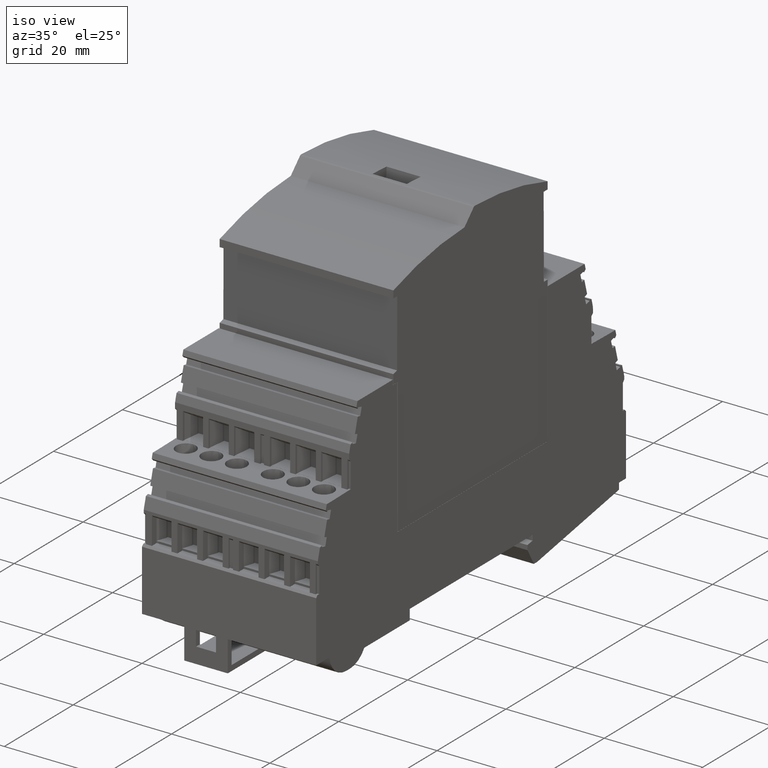
[diagram: clean part render]
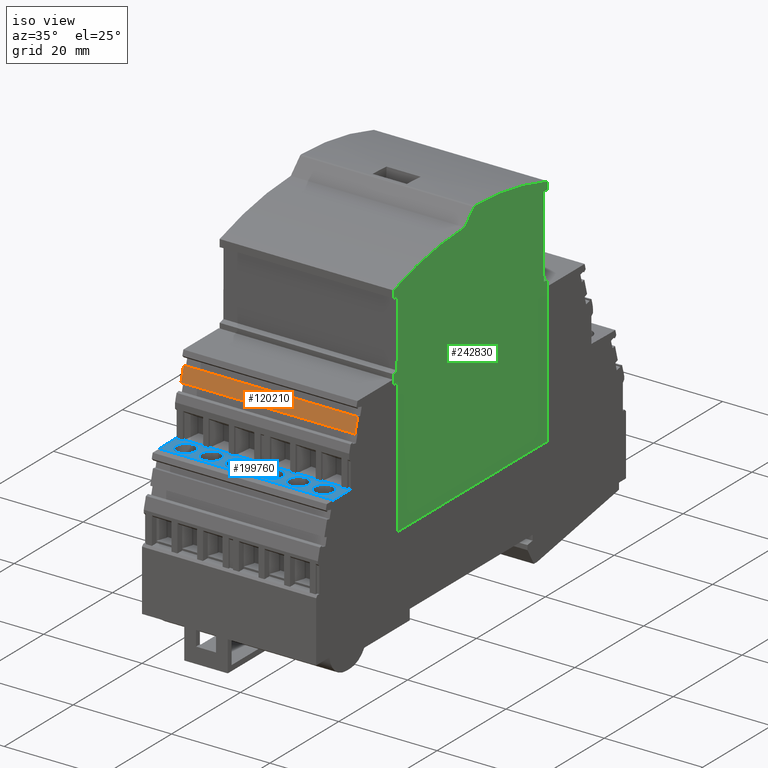
[diagram: same view with three faces highlighted in distinct colors, each labeled with its STEP entity id]
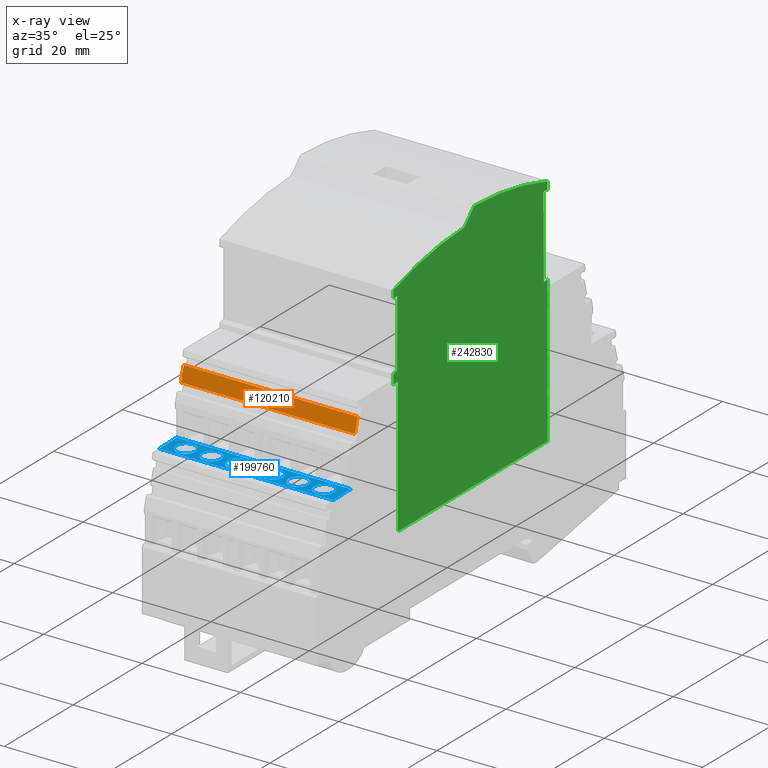
[diagram: x-ray of the same camera — body ghosted, the three highlighted faces saturated]
A machine part, iso view with three faces highlighted in distinct colors.
The next image is the same camera in x-ray (body ghosted, the three faces saturated) — at least one of them is partly hidden behind the body in this view.
Their STEP definitions:

[orange] entity #120210 — the highlighted planar face has unit normal (0, 0.9646, -0.2639).
#18190=CARTESIAN_POINT('',(98.1444898489384,195.882836901411,
87.3021431980011));
#18200=VERTEX_POINT('',#18190);
#18230=CARTESIAN_POINT('',(77.8990549103534,120.849919293595,
87.302143198001));
#18240=DIRECTION('',(-0.260504508642667,-0.965472630879221,
-2.77263400535688E-16));
#18250=VECTOR('',#18240,1.);
#18260=LINE('',#18230,#18250);
#18270=CARTESIAN_POINT('',(98.9260033748665,198.779254794049,
87.3021431980011));
#18280=VERTEX_POINT('',#18270);
#18290=EDGE_CURVE('',#18280,#18200,#18260,.T.);
#117860=CARTESIAN_POINT('',(98.9260033748665,198.779254794049,
51.902143198001));
#117870=VERTEX_POINT('',#117860);
#117900=CARTESIAN_POINT('',(88.7613087935767,161.107221896749,
51.902143198001));
#117910=DIRECTION('',(0.260504508642667,0.965472630879221,
2.77261026446115E-16));
#117920=VECTOR('',#117910,1.);
#117930=LINE('',#117900,#117920);
#117940=CARTESIAN_POINT('',(98.1444898489385,195.882836901411,
51.902143198001));
#117950=VERTEX_POINT('',#117940);
#117960=EDGE_CURVE('',#117950,#117870,#117930,.T.);
#120000=CARTESIAN_POINT('',(98.9021325346424,198.690785527115,
51.902143198001));
#120010=DIRECTION('',(0.96547263087922,-0.260504508642667,
9.08682826171789E-16));
#120020=DIRECTION('',(0.260504508642667,0.965472630879221,
2.77261026446115E-16));
#120030=AXIS2_PLACEMENT_3D('',#120000,#120010,#120020);
#120040=PLANE('',#120030);
#120050=ORIENTED_EDGE('',*,*,#117960,.F.);
#120060=CARTESIAN_POINT('',(98.9260033748665,198.779254794049,
103.152143198093));
#120070=DIRECTION('',(9.40929702887336E-16,-9.24937744861512E-19,-1.));
#120080=VECTOR('',#120070,1.);
#120090=LINE('',#120060,#120080);
#120100=EDGE_CURVE('',#18280,#117870,#120090,.T.);
#120110=ORIENTED_EDGE('',*,*,#120100,.T.);
#120120=ORIENTED_EDGE('',*,*,#18290,.F.);
#120130=CARTESIAN_POINT('',(98.1444898489385,195.882836901411,
103.152143198093));
#120140=DIRECTION('',(9.40929702887336E-16,-9.24937744861512E-19,-1.));
#120150=VECTOR('',#120140,1.);
#120160=LINE('',#120130,#120150);
#120170=EDGE_CURVE('',#18200,#117950,#120160,.T.);
#120180=ORIENTED_EDGE('',*,*,#120170,.F.);
#120190=EDGE_LOOP('',(#120180,#120120,#120110,#120050));
#120200=FACE_OUTER_BOUND('',#120190,.T.);
#120210=ADVANCED_FACE('',(#120200),#120040,.F.);

[blue] entity #199760 — the highlighted planar face has unit normal (0, 0.0197, -0.9998).
#17390=CARTESIAN_POINT('',(91.8825394237235,186.105397818636,
87.302143198001));
#17400=VERTEX_POINT('',#17390);
#17430=CARTESIAN_POINT('',(71.442721848133,185.630335277526,
87.302143198001));
#17440=DIRECTION('',(-0.999730013753946,-0.0232357397027754,
-1.06310981489542E-15));
#17450=VECTOR('',#17440,1.);
#17460=LINE('',#17430,#17450);
#17470=CARTESIAN_POINT('',(96.9455165743599,186.223071608134,
87.302143198001));
#17480=VERTEX_POINT('',#17470);
#17490=EDGE_CURVE('',#17480,#17400,#17460,.T.);
#40430=CARTESIAN_POINT('',(96.9455165743599,186.223071608134,
85.712143198001));
#40440=VERTEX_POINT('',#40430);
#40470=CARTESIAN_POINT('',(96.9455165743599,186.223071608134,
120.852143198093));
#40480=DIRECTION('',(-9.40929702887336E-16,9.24937744861522E-19,1.));
#40490=VECTOR('',#40480,1.);
#40500=LINE('',#40470,#40490);
#40510=CARTESIAN_POINT('',(96.9455165743599,186.223071608134,
81.5921431980011));
#40520=VERTEX_POINT('',#40510);
#40530=EDGE_CURVE('',#40520,#40440,#40500,.T.);
#40830=CARTESIAN_POINT('',(96.9455165743599,186.223071608134,
80.5121431980011));
#40840=VERTEX_POINT('',#40830);
#40870=CARTESIAN_POINT('',(96.9455165743599,186.223071608134,
76.3921431980011));
#40880=VERTEX_POINT('',#40870);
#40890=EDGE_CURVE('',#40880,#40840,#40500,.T.);
#41190=CARTESIAN_POINT('',(96.9455165743599,186.223071608134,
75.3121431980011));
#41200=VERTEX_POINT('',#41190);
#41250=CARTESIAN_POINT('',(96.94551657436,186.223071608134,
71.1921431980011));
#41260=VERTEX_POINT('',#41250);
#41270=EDGE_CURVE('',#41260,#41200,#40500,.T.);
#41800=CARTESIAN_POINT('',(96.94551657436,186.223071608134,
69.9921431980011));
#41810=VERTEX_POINT('',#41800);
#42200=CARTESIAN_POINT('',(96.9455165743599,186.223071608134,
120.852143198093));
#42210=DIRECTION('',(9.40929702887336E-16,-9.24937744861522E-19,-1.));
#42220=VECTOR('',#42210,1.);
#42230=LINE('',#42200,#42220);
#42240=EDGE_CURVE('',#41260,#41810,#42230,.T.);
#45440=CARTESIAN_POINT('',(96.9455165743599,186.223071608134,
120.852143198093));
#45450=DIRECTION('',(9.40929702887336E-16,-9.24937744861522E-19,-1.));
#45460=VECTOR('',#45450,1.);
#45470=LINE('',#45440,#45460);
#45480=EDGE_CURVE('',#40880,#41200,#45470,.T.);
#45800=CARTESIAN_POINT('',(96.9455165743599,186.223071608134,
120.852143198093));
#45810=DIRECTION('',(9.40929702887336E-16,-9.24937744861522E-19,-1.));
#45820=VECTOR('',#45810,1.);
#45830=LINE('',#45800,#45820);
#45840=EDGE_CURVE('',#40520,#40840,#45830,.T.);
#47390=CARTESIAN_POINT('',(96.9455165743599,186.223071608134,
86.9121431980011));
#47400=VERTEX_POINT('',#47390);
#47430=CARTESIAN_POINT('',(96.9455165743599,186.223071608134,
120.852143198093));
#47440=DIRECTION('',(9.40929702887336E-16,-9.24937744861522E-19,-1.));
#47450=VECTOR('',#47440,1.);
#47460=LINE('',#47430,#47450);
#47470=EDGE_CURVE('',#47400,#40440,#47460,.T.);
#47700=EDGE_CURVE('',#47400,#17480,#40500,.T.);
#56610=CARTESIAN_POINT('',(92.3926972658695,186.117254914717,
78.452143198001));
#56620=VERTEX_POINT('',#56610);
#56710=CARTESIAN_POINT('',(96.3923718723095,186.210215410823,
78.4521431980005));
#56720=VERTEX_POINT('',#56710);
#56750=CARTESIAN_POINT('',(96.3923718723095,186.210215410823,
78.8355477278552));
#56760=CARTESIAN_POINT('',(96.3923718723095,186.210215410823,
78.068738668147));
#56770=CARTESIAN_POINT('',(96.282172016952,186.207654144162,
77.6934019783332));
#56780=CARTESIAN_POINT('',(95.867637371385,186.198019523825,
77.0483211478466));
#56790=CARTESIAN_POINT('',(95.5720254807534,186.191148907909,
76.7921512050464));
#56800=CARTESIAN_POINT('',(94.874568010625,186.174938591117,
76.4736072095377));
#56810=CARTESIAN_POINT('',(94.4873987713011,186.165939997955,
76.4179361605798));
#56820=CARTESIAN_POINT('',(93.7284562953781,186.148300645752,
76.5270644678986));
#56830=CARTESIAN_POINT('',(93.3726532052401,186.140031065091,
76.6895674774743));
#56840=CARTESIAN_POINT('',(92.7931845971968,186.126563047169,
77.1917206211107));
#56850=CARTESIAN_POINT('',(92.581712623379,186.121648012439,
77.5208041318712));
#56860=CARTESIAN_POINT('',(92.3656950719395,186.116627329328,
78.2565520367652));
#56870=CARTESIAN_POINT('',(92.3656950719395,186.116627329328,
78.6477343592369));
#56880=CARTESIAN_POINT('',(92.5817126233789,186.121648012439,
79.3834822641309));
#56890=CARTESIAN_POINT('',(92.7931845971968,186.126563047169,
79.7125657748913));
#56900=CARTESIAN_POINT('',(93.37265320524,186.140031065091,
80.2147189185278));
#56910=CARTESIAN_POINT('',(93.7284562953781,186.148300645752,
80.3772219281035));
#56920=CARTESIAN_POINT('',(94.487398771301,186.165939997955,
80.4863502354224));
#56930=CARTESIAN_POINT('',(94.8745680106249,186.174938591117,
80.4306791864644));
#56940=CARTESIAN_POINT('',(95.5720254807533,186.191148907909,
80.1121351909558));
#56950=CARTESIAN_POINT('',(95.8676373713849,186.198019523825,
79.8559652481555));
#56960=CARTESIAN_POINT('',(96.282172016952,186.207654144162,
79.210884417669));
#56970=CARTESIAN_POINT('',(96.3923718723095,186.210215410823,
78.8355477278552));
#56980=CARTESIAN_POINT('',(96.3923718723095,186.210215410823,
78.068738668147));
#56990=B_SPLINE_CURVE_WITH_KNOTS('',3,(#56750,#56760,#56770,#56780,
#56790,#56800,#56810,#56820,#56830,#56840,#56850,#56860,#56870,#56880,
#56890,#56900,#56910,#56920,#56930,#56940,#56950,#56960,#56970,#56980),
.UNSPECIFIED.,.T.,.F.,(2,2,2,2,2,2,2,2,2,2,2,2,2,2),(-1.,0.,1.,2.,3.,4.,
5.,6.,7.,8.,9.,10.,11.,12.),.UNSPECIFIED.);
#57000=EDGE_CURVE('',#56620,#56720,#56990,.T.);
#57960=CARTESIAN_POINT('',(92.3926972658695,186.117254914717,
73.2521431980011));
#57970=VERTEX_POINT('',#57960);
#59090=CARTESIAN_POINT('',(96.3923718723096,186.210215410823,
73.2521431980011));
#59100=VERTEX_POINT('',#59090);
#59130=CARTESIAN_POINT('',(96.3923718723095,186.210215410823,
73.6355477278552));
#59140=CARTESIAN_POINT('',(96.3923718723096,186.210215410823,
72.868738668147));
#59150=CARTESIAN_POINT('',(96.282172016952,186.207654144162,
72.4934019783332));
#59160=CARTESIAN_POINT('',(95.867637371385,186.198019523825,
71.8483211478466));
#59170=CARTESIAN_POINT('',(95.5720254807534,186.191148907909,
71.5921512050464));
#59180=CARTESIAN_POINT('',(94.874568010625,186.174938591117,
71.2736072095377));
#59190=CARTESIAN_POINT('',(94.4873987713011,186.165939997955,
71.2179361605798));
#59200=CARTESIAN_POINT('',(93.7284562953781,186.148300645752,
71.3270644678986));
#59210=CARTESIAN_POINT('',(93.3726532052401,186.140031065091,
71.4895674774743));
#59220=CARTESIAN_POINT('',(92.7931845971968,186.126563047169,
71.9917206211107));
#59230=CARTESIAN_POINT('',(92.581712623379,186.121648012439,
72.3208041318712));
#59240=CARTESIAN_POINT('',(92.3656950719396,186.116627329328,
73.0565520367652));
#59250=CARTESIAN_POINT('',(92.3656950719395,186.116627329328,
73.4477343592369));
#59260=CARTESIAN_POINT('',(92.5817126233789,186.121648012439,
74.1834822641309));
#59270=CARTESIAN_POINT('',(92.7931845971968,186.126563047169,
74.5125657748914));
#59280=CARTESIAN_POINT('',(93.37265320524,186.140031065091,
75.0147189185278));
#59290=CARTESIAN_POINT('',(93.7284562953781,186.148300645752,
75.1772219281035));
#59300=CARTESIAN_POINT('',(94.487398771301,186.165939997955,
75.2863502354224));
#59310=CARTESIAN_POINT('',(94.874568010625,186.174938591117,
75.2306791864644));
#59320=CARTESIAN_POINT('',(95.5720254807533,186.191148907909,
74.9121351909558));
#59330=CARTESIAN_POINT('',(95.867637371385,186.198019523825,
74.6559652481556));
#59340=CARTESIAN_POINT('',(96.282172016952,186.207654144162,
74.010884417669));
#59350=CARTESIAN_POINT('',(96.3923718723095,186.210215410823,
73.6355477278552));
#59360=CARTESIAN_POINT('',(96.3923718723096,186.210215410823,
72.868738668147));
#59370=B_SPLINE_CURVE_WITH_KNOTS('',3,(#59130,#59140,#59150,#59160,
#59170,#59180,#59190,#59200,#59210,#59220,#59230,#59240,#59250,#59260,
#59270,#59280,#59290,#59300,#59310,#59320,#59330,#59340,#59350,#59360),
.UNSPECIFIED.,.T.,.F.,(2,2,2,2,2,2,2,2,2,2,2,2,2,2),(-1.,0.,1.,2.,3.,4.,
5.,6.,7.,8.,9.,10.,11.,12.),.UNSPECIFIED.);
#59380=EDGE_CURVE('',#57970,#59100,#59370,.T.);
#63500=CARTESIAN_POINT('',(92.3926972658695,186.117254914717,
83.6521431980011));
#63510=VERTEX_POINT('',#63500);
#63630=CARTESIAN_POINT('',(96.3923718723095,186.210215410823,
83.6521431980004));
#63640=VERTEX_POINT('',#63630);
#63670=CARTESIAN_POINT('',(96.3923718723095,186.210215410823,
84.0355477278552));
#63680=CARTESIAN_POINT('',(96.3923718723095,186.210215410823,
83.268738668147));
#63690=CARTESIAN_POINT('',(96.282172016952,186.207654144162,
82.8934019783331));
#63700=CARTESIAN_POINT('',(95.867637371385,186.198019523825,
82.2483211478466));
#63710=CARTESIAN_POINT('',(95.5720254807534,186.191148907909,
81.9921512050464));
#63720=CARTESIAN_POINT('',(94.874568010625,186.174938591117,
81.6736072095377));
#63730=CARTESIAN_POINT('',(94.487398771301,186.165939997955,
81.6179361605798));
#63740=CARTESIAN_POINT('',(93.7284562953781,186.148300645752,
81.7270644678986));
#63750=CARTESIAN_POINT('',(93.37265320524,186.140031065091,
81.8895674774743));
#63760=CARTESIAN_POINT('',(92.7931845971968,186.126563047169,
82.3917206211108));
#63770=CARTESIAN_POINT('',(92.5817126233789,186.121648012439,
82.7208041318712));
#63780=CARTESIAN_POINT('',(92.3656950719396,186.116627329328,
83.4565520367652));
#63790=CARTESIAN_POINT('',(92.3656950719396,186.116627329328,
83.8477343592369));
#63800=CARTESIAN_POINT('',(92.5817126233789,186.121648012439,
84.5834822641309));
#63810=CARTESIAN_POINT('',(92.7931845971968,186.126563047169,
84.9125657748913));
#63820=CARTESIAN_POINT('',(93.37265320524,186.140031065091,
85.4147189185278));
#63830=CARTESIAN_POINT('',(93.7284562953781,186.148300645752,
85.5772219281035));
#63840=CARTESIAN_POINT('',(94.487398771301,186.165939997955,
85.6863502354224));
#63850=CARTESIAN_POINT('',(94.874568010625,186.174938591117,
85.6306791864644));
#63860=CARTESIAN_POINT('',(95.5720254807533,186.191148907909,
85.3121351909558));
#63870=CARTESIAN_POINT('',(95.8676373713849,186.198019523825,
85.0559652481555));
#63880=CARTESIAN_POINT('',(96.282172016952,186.207654144162,
84.410884417669));
#63890=CARTESIAN_POINT('',(96.3923718723095,186.210215410823,
84.0355477278552));
#63900=CARTESIAN_POINT('',(96.3923718723095,186.210215410823,
83.268738668147));
#63910=B_SPLINE_CURVE_WITH_KNOTS('',3,(#63670,#63680,#63690,#63700,
#63710,#63720,#63730,#63740,#63750,#63760,#63770,#63780,#63790,#63800,
#63810,#63820,#63830,#63840,#63850,#63860,#63870,#63880,#63890,#63900),
.UNSPECIFIED.,.T.,.F.,(2,2,2,2,2,2,2,2,2,2,2,2,2,2),(-1.,0.,1.,2.,3.,4.,
5.,6.,7.,8.,9.,10.,11.,12.),.UNSPECIFIED.);
#63920=EDGE_CURVE('',#63510,#63640,#63910,.T.);
#102570=EDGE_CURVE('',#59100,#57970,#59370,.T.);
#102940=EDGE_CURVE('',#63640,#63510,#63910,.T.);
#103280=EDGE_CURVE('',#56720,#56620,#56990,.T.);
#118660=CARTESIAN_POINT('',(96.94551657436,186.223071608134,
51.902143198001));
#118670=VERTEX_POINT('',#118660);
#118700=CARTESIAN_POINT('',(99.6600244942781,186.286162241186,
51.902143198001));
#118710=DIRECTION('',(-0.999730013753946,-0.0232357397027754,
-1.06310081955959E-15));
#118720=VECTOR('',#118710,1.);
#118730=LINE('',#118700,#118720);
#118740=CARTESIAN_POINT('',(91.8825394237235,186.105397818636,
51.902143198001));
#118750=VERTEX_POINT('',#118740);
#118760=EDGE_CURVE('',#118670,#118750,#118730,.T.);
#197690=CARTESIAN_POINT('',(91.8825394237235,186.105397818636,
103.152143198093));
#197700=DIRECTION('',(-9.40929702887336E-16,9.24937744861522E-19,1.));
#197710=VECTOR('',#197700,1.);
#197720=LINE('',#197690,#197710);
#197730=EDGE_CURVE('',#118750,#17400,#197720,.T.);
#197870=CARTESIAN_POINT('',(96.94551657436,186.223071608134,
51.902143198001));
#197880=DIRECTION('',(0.0232357397027754,-0.999730013753946,
2.27878856792919E-17));
#197890=DIRECTION('',(0.999730013753946,0.0232357397027754,
1.06310081955959E-15));
#197900=AXIS2_PLACEMENT_3D('',#197870,#197880,#197890);
#197910=PLANE('',#197900);
#197920=CARTESIAN_POINT('',(96.3923718723096,186.210215410823,
55.9355477278552));
#197930=CARTESIAN_POINT('',(96.3923718723096,186.210215410823,
55.1687386681469));
#197940=CARTESIAN_POINT('',(96.282172016952,186.207654144162,
54.7934019783331));
#197950=CARTESIAN_POINT('',(95.867637371385,186.198019523825,
54.1483211478466));
#197960=CARTESIAN_POINT('',(95.5720254807534,186.191148907909,
53.8921512050464));
#197970=CARTESIAN_POINT('',(94.874568010625,186.174938591117,
53.5736072095377));
#197980=CARTESIAN_POINT('',(94.4873987713011,186.165939997955,
53.5179361605798));
#197990=CARTESIAN_POINT('',(93.7284562953782,186.148300645752,
53.6270644678986));
#198000=CARTESIAN_POINT('',(93.3726532052401,186.140031065091,
53.7895674774743));
#198010=CARTESIAN_POINT('',(92.7931845971968,186.126563047169,
54.2917206211107));
#198020=CARTESIAN_POINT('',(92.581712623379,186.121648012439,
54.6208041318712));
#198030=CARTESIAN_POINT('',(92.3656950719396,186.116627329328,
55.3565520367652));
#198040=CARTESIAN_POINT('',(92.3656950719396,186.116627329328,
55.7477343592369));
#198050=CARTESIAN_POINT('',(92.5817126233789,186.121648012439,
56.4834822641309));
#198060=CARTESIAN_POINT('',(92.7931845971968,186.126563047169,
56.8125657748913));
#198070=CARTESIAN_POINT('',(93.37265320524,186.140031065091,
57.3147189185278));
#198080=CARTESIAN_POINT('',(93.7284562953781,186.148300645752,
57.4772219281035));
#198090=CARTESIAN_POINT('',(94.487398771301,186.165939997955,
57.5863502354224));
#198100=CARTESIAN_POINT('',(94.874568010625,186.174938591117,
57.5306791864644));
#198110=CARTESIAN_POINT('',(95.5720254807533,186.191148907909,
57.2121351909558));
#198120=CARTESIAN_POINT('',(95.867637371385,186.198019523825,
56.9559652481555));
#198130=CARTESIAN_POINT('',(96.282172016952,186.207654144162,
56.310884417669));
#198140=CARTESIAN_POINT('',(96.3923718723096,186.210215410823,
55.9355477278552));
#198150=CARTESIAN_POINT('',(96.3923718723096,186.210215410823,
55.1687386681469));
#198160=B_SPLINE_CURVE_WITH_KNOTS('',3,(#197920,#197930,#197940,#197950,
#197960,#197970,#197980,#197990,#198000,#198010,#198020,#198030,#198040,
#198050,#198060,#198070,#198080,#198090,#198100,#198110,#198120,#198130,
#198140,#198150),.UNSPECIFIED.,.T.,.F.,(2,2,2,2,2,2,2,2,2,2,2,2,2,2),(
-1.,0.,1.,2.,3.,4.,5.,6.,7.,8.,9.,10.,11.,12.),.UNSPECIFIED.);
#198170=CARTESIAN_POINT('',(96.3923718723096,186.210215410823,
55.5521431980004));
#198180=VERTEX_POINT('',#198170);
#198190=CARTESIAN_POINT('',(92.3926972658695,186.117254914717,
55.552143198001));
#198200=VERTEX_POINT('',#198190);
#198210=EDGE_CURVE('',#198180,#198200,#198160,.T.);
#198220=ORIENTED_EDGE('',*,*,#198210,.F.);
#198230=EDGE_CURVE('',#198200,#198180,#198160,.T.);
#198240=ORIENTED_EDGE('',*,*,#198230,.F.);
#198250=EDGE_LOOP('',(#198240,#198220));
#198260=FACE_BOUND('',#198250,.T.);
#198270=CARTESIAN_POINT('',(96.3923718723095,186.210215410823,
66.3355477278552));
#198280=CARTESIAN_POINT('',(96.3923718723096,186.210215410823,
65.5687386681469));
#198290=CARTESIAN_POINT('',(96.282172016952,186.207654144162,
65.1934019783331));
#198300=CARTESIAN_POINT('',(95.867637371385,186.198019523825,
64.5483211478466));
#198310=CARTESIAN_POINT('',(95.5720254807534,186.191148907909,
64.2921512050464));
#198320=CARTESIAN_POINT('',(94.874568010625,186.174938591117,
63.9736072095377));
#198330=CARTESIAN_POINT('',(94.487398771301,186.165939997955,
63.9179361605798));
#198340=CARTESIAN_POINT('',(93.7284562953781,186.148300645752,
64.0270644678986));
#198350=CARTESIAN_POINT('',(93.3726532052401,186.140031065091,
64.1895674774743));
#198360=CARTESIAN_POINT('',(92.7931845971968,186.126563047169,
64.6917206211107));
#198370=CARTESIAN_POINT('',(92.581712623379,186.121648012439,
65.0208041318712));
#198380=CARTESIAN_POINT('',(92.3656950719396,186.116627329328,
65.7565520367652));
#198390=CARTESIAN_POINT('',(92.3656950719396,186.116627329328,
66.1477343592369));
#198400=CARTESIAN_POINT('',(92.581712623379,186.121648012439,
66.8834822641309));
#198410=CARTESIAN_POINT('',(92.7931845971968,186.126563047169,
67.2125657748913));
#198420=CARTESIAN_POINT('',(93.37265320524,186.140031065091,
67.7147189185278));
#198430=CARTESIAN_POINT('',(93.7284562953781,186.148300645752,
67.8772219281035));
#198440=CARTESIAN_POINT('',(94.487398771301,186.165939997955,
67.9863502354224));
#198450=CARTESIAN_POINT('',(94.874568010625,186.174938591117,
67.9306791864644));
#198460=CARTESIAN_POINT('',(95.5720254807533,186.191148907909,
67.6121351909558));
#198470=CARTESIAN_POINT('',(95.8676373713849,186.198019523825,
67.3559652481555));
#198480=CARTESIAN_POINT('',(96.282172016952,186.207654144162,
66.710884417669));
#198490=CARTESIAN_POINT('',(96.3923718723095,186.210215410823,
66.3355477278552));
#198500=CARTESIAN_POINT('',(96.3923718723096,186.210215410823,
65.5687386681469));
#198510=B_SPLINE_CURVE_WITH_KNOTS('',3,(#198270,#198280,#198290,#198300,
#198310,#198320,#198330,#198340,#198350,#198360,#198370,#198380,#198390,
#198400,#198410,#198420,#198430,#198440,#198450,#198460,#198470,#198480,
#198490,#198500),.UNSPECIFIED.,.T.,.F.,(2,2,2,2,2,2,2,2,2,2,2,2,2,2),(
-1.,0.,1.,2.,3.,4.,5.,6.,7.,8.,9.,10.,11.,12.),.UNSPECIFIED.);
#198520=CARTESIAN_POINT('',(96.3923718723096,186.210215410823,
65.9521431980004));
#198530=VERTEX_POINT('',#198520);
#198540=CARTESIAN_POINT('',(92.3926972658695,186.117254914717,
65.952143198001));
#198550=VERTEX_POINT('',#198540);
#198560=EDGE_CURVE('',#198530,#198550,#198510,.T.);
#198570=ORIENTED_EDGE('',*,*,#198560,.F.);
#198580=EDGE_CURVE('',#198550,#198530,#198510,.T.);
#198590=ORIENTED_EDGE('',*,*,#198580,.F.);
#198600=EDGE_LOOP('',(#198590,#198570));
#198610=FACE_BOUND('',#198600,.T.);
#198620=ORIENTED_EDGE('',*,*,#103280,.F.);
#198630=ORIENTED_EDGE('',*,*,#57000,.F.);
#198640=EDGE_LOOP('',(#198630,#198620));
#198650=FACE_BOUND('',#198640,.T.);
#198660=ORIENTED_EDGE('',*,*,#102570,.F.);
#198670=ORIENTED_EDGE('',*,*,#59380,.F.);
#198680=EDGE_LOOP('',(#198670,#198660));
#198690=FACE_BOUND('',#198680,.T.);
#198700=ORIENTED_EDGE('',*,*,#102940,.F.);
#198710=ORIENTED_EDGE('',*,*,#63920,.F.);
#198720=EDGE_LOOP('',(#198710,#198700));
#198730=FACE_BOUND('',#198720,.T.);
#198740=CARTESIAN_POINT('',(96.3923718723095,186.210215410823,
61.1355477278552));
#198750=CARTESIAN_POINT('',(96.3923718723095,186.210215410823,
60.368738668147));
#198760=CARTESIAN_POINT('',(96.282172016952,186.207654144162,
59.9934019783331));
#198770=CARTESIAN_POINT('',(95.867637371385,186.198019523825,
59.3483211478466));
#198780=CARTESIAN_POINT('',(95.5720254807534,186.191148907909,
59.0921512050463));
#198790=CARTESIAN_POINT('',(94.874568010625,186.174938591117,
58.7736072095377));
#198800=CARTESIAN_POINT('',(94.4873987713011,186.165939997955,
58.7179361605797));
#198810=CARTESIAN_POINT('',(93.7284562953782,186.148300645752,
58.8270644678986));
#198820=CARTESIAN_POINT('',(93.3726532052401,186.140031065091,
58.9895674774743));
#198830=CARTESIAN_POINT('',(92.7931845971968,186.126563047169,
59.4917206211107));
#198840=CARTESIAN_POINT('',(92.581712623379,186.121648012439,
59.8208041318711));
#198850=CARTESIAN_POINT('',(92.3656950719395,186.116627329328,
60.5565520367651));
#198860=CARTESIAN_POINT('',(92.3656950719395,186.116627329328,
60.9477343592369));
#198870=CARTESIAN_POINT('',(92.581712623379,186.121648012439,
61.6834822641309));
#198880=CARTESIAN_POINT('',(92.7931845971968,186.126563047169,
62.0125657748913));
#198890=CARTESIAN_POINT('',(93.37265320524,186.140031065091,
62.5147189185277));
#198900=CARTESIAN_POINT('',(93.7284562953781,186.148300645752,
62.6772219281035));
#198910=CARTESIAN_POINT('',(94.487398771301,186.165939997955,
62.7863502354223));
#198920=CARTESIAN_POINT('',(94.874568010625,186.174938591117,
62.7306791864644));
#198930=CARTESIAN_POINT('',(95.5720254807533,186.191148907909,
62.4121351909558));
#198940=CARTESIAN_POINT('',(95.8676373713849,186.198019523825,
62.1559652481555));
#198950=CARTESIAN_POINT('',(96.282172016952,186.207654144162,
61.510884417669));
#198960=CARTESIAN_POINT('',(96.3923718723095,186.210215410823,
61.1355477278552));
#198970=CARTESIAN_POINT('',(96.3923718723095,186.210215410823,
60.368738668147));
#198980=B_SPLINE_CURVE_WITH_KNOTS('',3,(#198740,#198750,#198760,#198770,
#198780,#198790,#198800,#198810,#198820,#198830,#198840,#198850,#198860,
#198870,#198880,#198890,#198900,#198910,#198920,#198930,#198940,#198950,
#198960,#198970),.UNSPECIFIED.,.T.,.F.,(2,2,2,2,2,2,2,2,2,2,2,2,2,2),(
-1.,0.,1.,2.,3.,4.,5.,6.,7.,8.,9.,10.,11.,12.),.UNSPECIFIED.);
#198990=CARTESIAN_POINT('',(96.3923718723096,186.210215410823,
60.7521431980004));
#199000=VERTEX_POINT('',#198990);
#199010=CARTESIAN_POINT('',(92.3926972658695,186.117254914717,
60.752143198001));
#199020=VERTEX_POINT('',#199010);
#199030=EDGE_CURVE('',#199000,#199020,#198980,.T.);
#199040=ORIENTED_EDGE('',*,*,#199030,.F.);
#199050=EDGE_CURVE('',#199020,#199000,#198980,.T.);
#199060=ORIENTED_EDGE('',*,*,#199050,.F.);
#199070=EDGE_LOOP('',(#199060,#199040));
#199080=FACE_BOUND('',#199070,.T.);
#199090=ORIENTED_EDGE('',*,*,#118760,.T.);
#199100=CARTESIAN_POINT('',(96.9455165743599,186.223071608134,
103.152143198093));
#199110=DIRECTION('',(-9.40929702887336E-16,9.24937744861522E-19,1.));
#199120=VECTOR('',#199110,1.);
#199130=LINE('',#199100,#199120);
#199140=CARTESIAN_POINT('',(96.94551657436,186.223071608134,
52.2921431980011));
#199150=VERTEX_POINT('',#199140);
#199160=EDGE_CURVE('',#118670,#199150,#199130,.T.);
#199170=ORIENTED_EDGE('',*,*,#199160,.F.);
#199180=CARTESIAN_POINT('',(96.9455165743599,186.223071608134,
103.152143198093));
#199190=DIRECTION('',(9.40929702887336E-16,-9.24937744861522E-19,-1.));
#199200=VECTOR('',#199190,1.);
#199210=LINE('',#199180,#199200);
#199220=CARTESIAN_POINT('',(96.94551657436,186.223071608134,
53.492143198001));
#199230=VERTEX_POINT('',#199220);
#199240=EDGE_CURVE('',#199230,#199150,#199210,.T.);
#199250=ORIENTED_EDGE('',*,*,#199240,.T.);
#199260=CARTESIAN_POINT('',(96.94551657436,186.223071608134,
57.6121431980011));
#199270=VERTEX_POINT('',#199260);
#199280=EDGE_CURVE('',#199230,#199270,#199130,.T.);
#199290=ORIENTED_EDGE('',*,*,#199280,.F.);
#199300=CARTESIAN_POINT('',(96.9455165743599,186.223071608134,
103.152143198093));
#199310=DIRECTION('',(9.40929702887336E-16,-9.24937744861522E-19,-1.));
#199320=VECTOR('',#199310,1.);
#199330=LINE('',#199300,#199320);
#199340=CARTESIAN_POINT('',(96.94551657436,186.223071608134,
58.692143198001));
#199350=VERTEX_POINT('',#199340);
#199360=EDGE_CURVE('',#199350,#199270,#199330,.T.);
#199370=ORIENTED_EDGE('',*,*,#199360,.T.);
#199380=CARTESIAN_POINT('',(96.94551657436,186.223071608134,
62.8121431980011));
#199390=VERTEX_POINT('',#199380);
#199400=EDGE_CURVE('',#199350,#199390,#199130,.T.);
#199410=ORIENTED_EDGE('',*,*,#199400,.F.);
#199420=CARTESIAN_POINT('',(96.9455165743599,186.223071608134,
103.152143198093));
#199430=DIRECTION('',(9.40929702887336E-16,-9.24937744861522E-19,-1.));
#199440=VECTOR('',#199430,1.);
#199450=LINE('',#199420,#199440);
#199460=CARTESIAN_POINT('',(96.94551657436,186.223071608134,
63.892143198001));
#199470=VERTEX_POINT('',#199460);
#199480=EDGE_CURVE('',#199470,#199390,#199450,.T.);
#199490=ORIENTED_EDGE('',*,*,#199480,.T.);
#199500=CARTESIAN_POINT('',(96.94551657436,186.223071608134,
68.012143198001));
#199510=VERTEX_POINT('',#199500);
#199520=EDGE_CURVE('',#199470,#199510,#199130,.T.);
#199530=ORIENTED_EDGE('',*,*,#199520,.F.);
#199540=CARTESIAN_POINT('',(96.9455165743599,186.223071608134,
103.152143198093));
#199550=DIRECTION('',(9.40929702887336E-16,-9.24937744861522E-19,-1.));
#199560=VECTOR('',#199550,1.);
#199570=LINE('',#199540,#199560);
#199580=CARTESIAN_POINT('',(96.94551657436,186.223071608134,
69.212143198001));
#199590=VERTEX_POINT('',#199580);
#199600=EDGE_CURVE('',#199590,#199510,#199570,.T.);
#199610=ORIENTED_EDGE('',*,*,#199600,.T.);
#199620=EDGE_CURVE('',#199590,#41810,#199130,.T.);
#199630=ORIENTED_EDGE('',*,*,#199620,.F.);
#199640=ORIENTED_EDGE('',*,*,#42240,.T.);
#199650=ORIENTED_EDGE('',*,*,#41270,.F.);
#199660=ORIENTED_EDGE('',*,*,#45480,.T.);
#199670=ORIENTED_EDGE('',*,*,#40890,.F.);
#199680=ORIENTED_EDGE('',*,*,#45840,.T.);
#199690=ORIENTED_EDGE('',*,*,#40530,.F.);
#199700=ORIENTED_EDGE('',*,*,#47470,.T.);
#199710=ORIENTED_EDGE('',*,*,#47700,.F.);
#199720=ORIENTED_EDGE('',*,*,#17490,.F.);
#199730=ORIENTED_EDGE('',*,*,#197730,.T.);
#199740=EDGE_LOOP('',(#199730,#199720,#199710,#199700,#199690,#199680,
#199670,#199660,#199650,#199640,#199630,#199610,#199530,#199490,#199410,
#199370,#199290,#199250,#199170,#199090));
#199750=FACE_OUTER_BOUND('',#199740,.T.);
#199760=ADVANCED_FACE('',(#198260,#198610,#198650,#198690,#198730,
#199080,#199750),#197910,.F.);

[green] entity #242830 — the highlighted planar face has unit normal (1, -0, 0).
#70420=CARTESIAN_POINT('',(110.335644210602,200.719904767668,
87.2721431980011));
#70430=VERTEX_POINT('',#70420);
#70670=CARTESIAN_POINT('',(109.314796403837,200.716341322117,
87.2721431980011));
#70680=VERTEX_POINT('',#70670);
#70710=CARTESIAN_POINT('',(132.276450575062,200.796492941057,
87.2721431980011));
#70720=DIRECTION('',(-0.999993907657791,-0.00349065141522364,
-1.06338673324829E-15));
#70730=VECTOR('',#70720,1.);
#70740=LINE('',#70710,#70730);
#70750=EDGE_CURVE('',#70430,#70680,#70740,.T.);
#82090=CARTESIAN_POINT('',(110.614788483792,200.720879168957,
87.2721431980011));
#82100=VERTEX_POINT('',#82090);
#82130=CARTESIAN_POINT('',(110.627624988686,197.043506334224,
87.2721431980011));
#82140=DIRECTION('',(-0.00349065141522388,0.999993907657791,
-4.20937171684986E-18));
#82150=VECTOR('',#82140,1.);
#82160=LINE('',#82130,#82150);
#82170=CARTESIAN_POINT('',(110.71078139771,173.221046708368,
87.2721431980011));
#82180=VERTEX_POINT('',#82170);
#82190=EDGE_CURVE('',#82180,#82100,#82160,.T.);
#82800=CARTESIAN_POINT('',(109.308075362794,202.641769930324,
87.2721431980011));
#82810=VERTEX_POINT('',#82800);
#82840=CARTESIAN_POINT('',(109.327648748869,197.034430640545,
87.2721431980011));
#82850=DIRECTION('',(0.00349065141522388,-0.999993907657791,
4.20937171684986E-18));
#82860=VECTOR('',#82850,1.);
#82870=LINE('',#82840,#82860);
#82880=EDGE_CURVE('',#82810,#70680,#82870,.T.);
#83500=CARTESIAN_POINT('',(165.086554995248,200.911022276237,
87.2721431980011));
#83510=DIRECTION('',(-0.999993907657791,-0.00349065141522364,
-1.06338673324829E-15));
#83520=VECTOR('',#83510,1.);
#83530=LINE('',#83500,#83520);
#83540=EDGE_CURVE('',#82100,#70430,#83530,.T.);
#122040=CARTESIAN_POINT('',(154.111032815492,201.872716413177,
87.2721431980011));
#122050=VERTEX_POINT('',#122040);
#179530=CARTESIAN_POINT('',(154.210516380826,173.37289004493,
87.2721431980011));
#179540=VERTEX_POINT('',#179530);
#179570=CARTESIAN_POINT('',(154.22924825059,168.00662644118,
87.2721431980011));
#179580=DIRECTION('',(0.00349065141522388,-0.999993907657791,
4.20937171684986E-18));
#179590=VECTOR('',#179580,1.);
#179600=LINE('',#179570,#179590);
#179610=EDGE_CURVE('',#122050,#179540,#179600,.T.);
#182620=CARTESIAN_POINT('',(132.468436402899,173.29699556031,
87.2721431980011));
#182630=DIRECTION('',(-0.999993907657791,-0.00349065141522364,
-1.06338673324829E-15));
#182640=VECTOR('',#182630,1.);
#182650=LINE('',#182620,#182640);
#182660=EDGE_CURVE('',#179540,#82180,#182650,.T.);
#241650=CARTESIAN_POINT('',(132.506429525096,167.854970093494,
87.2721431980011));
#241660=DIRECTION('',(-1.06339494818175E-15,4.97433666573419E-19,1.));
#241670=DIRECTION('',(0.999975630705395,0.00698126029796149,
1.06336556128307E-15));
#241680=AXIS2_PLACEMENT_3D('',#241650,#241660,#241670);
#241690=PLANE('',#241680);
#241700=ORIENTED_EDGE('',*,*,#70750,.F.);
#241710=ORIENTED_EDGE('',*,*,#82880,.T.);
#241720=CARTESIAN_POINT('',(164.970776158072,217.494849663465,
87.2721431980011));
#241730=DIRECTION('',(-0.966193039228597,-0.257819725673207,
-1.02731654867261E-15));
#241740=VECTOR('',#241730,1.);
#241750=LINE('',#241720,#241740);
#241760=CARTESIAN_POINT('',(110.391859409776,202.930967734838,
87.2721431980011));
#241770=VERTEX_POINT('',#241760);
#241780=EDGE_CURVE('',#241770,#82810,#241750,.T.);
#241790=ORIENTED_EDGE('',*,*,#241780,.T.);
#241800=CARTESIAN_POINT('',(110.385767503519,197.041817823018,
87.2721431980011));
#241810=DIRECTION('',(-0.00103442824333471,-0.999999464978962,
-6.02572367782713E-19));
#241820=VECTOR('',#241810,1.);
#241830=LINE('',#241800,#241820);
#241840=CARTESIAN_POINT('',(110.405929453554,216.532719562764,
87.2721431980011));
#241850=VERTEX_POINT('',#241840);
#241860=EDGE_CURVE('',#241850,#241770,#241830,.T.);
#241870=ORIENTED_EDGE('',*,*,#241860,.T.);
#241880=CARTESIAN_POINT('',(164.984538506467,215.523570491944,
87.2721431980011));
#241890=DIRECTION('',(-0.999829106954707,0.0184866677947818,
-1.06322241727165E-15));
#241900=VECTOR('',#241890,1.);
#241910=LINE('',#241880,#241900);
#241920=CARTESIAN_POINT('',(109.259347147093,216.553919671914,
87.2721431980011));
#241930=VERTEX_POINT('',#241920);
#241940=EDGE_CURVE('',#241850,#241930,#241910,.T.);
#241950=ORIENTED_EDGE('',*,*,#241940,.F.);
#241960=CARTESIAN_POINT('',(109.327483298246,197.034429485463,
87.2721431980011));
#241970=DIRECTION('',(0.00349065141522388,-0.999993907657791,
4.20937171684986E-18));
#241980=VECTOR('',#241970,1.);
#241990=LINE('',#241960,#241980);
#242000=CARTESIAN_POINT('',(109.254157732408,218.040571431763,
87.2721431980011));
#242010=VERTEX_POINT('',#242000);
#242020=EDGE_CURVE('',#242010,#241930,#241990,.T.);
#242030=ORIENTED_EDGE('',*,*,#242020,.T.);
#242040=CARTESIAN_POINT('',(131.881831134619,152.856306486894,
87.2721431980011));
#242050=DIRECTION('',(1.06340525669334E-15,-4.97379690839633E-19,-1.));
#242060=DIRECTION('',(-0.999993907657791,-0.00349065141522388,
-1.06339704188548E-15));
#242070=AXIS2_PLACEMENT_3D('',#242040,#242050,#242060);
#242080=CIRCLE('',#242070,69.);
#242090=CARTESIAN_POINT('',(129.905048023134,221.827984214278,
87.2721431980011));
#242100=VERTEX_POINT('',#242090);
#242110=EDGE_CURVE('',#242010,#242100,#242080,.T.);
#242120=ORIENTED_EDGE('',*,*,#242110,.F.);
#242130=CARTESIAN_POINT('',(164.695932898451,256.862607081952,
87.2721431980011));
#242140=DIRECTION('',(-0.704634209963596,-0.70957073653652,
-7.48951494818159E-16));
#242150=VECTOR('',#242140,1.);
#242160=LINE('',#242130,#242150);
#242170=CARTESIAN_POINT('',(132.559612836098,224.501146378256,
87.2721431980011));
#242180=VERTEX_POINT('',#242170);
#242190=EDGE_CURVE('',#242180,#242100,#242160,.T.);
#242200=ORIENTED_EDGE('',*,*,#242190,.T.);
#242210=CARTESIAN_POINT('',(132.914398204366,224.148829273274,
87.2721431980011));
#242220=DIRECTION('',(1.06340525669334E-15,-4.97379690839633E-19,-1.));
#242230=DIRECTION('',(-0.999993907657791,-0.00349065141522388,
-1.06339704188548E-15));
#242240=AXIS2_PLACEMENT_3D('',#242210,#242220,#242230);
#242250=CIRCLE('',#242240,0.5);
#242260=CARTESIAN_POINT('',(132.92163920766,224.648776838396,
87.2721431980011));
#242270=VERTEX_POINT('',#242260);
#242280=EDGE_CURVE('',#242180,#242270,#242250,.T.);
#242290=ORIENTED_EDGE('',*,*,#242280,.F.);
#242300=CARTESIAN_POINT('',(131.881831134619,152.856306486894,
87.2721431980011));
#242310=DIRECTION('',(1.06340525669334E-15,-4.97379690839633E-19,-1.));
#242320=DIRECTION('',(-0.999993907657791,-0.00349065141522388,
-1.06339704188548E-15));
#242330=AXIS2_PLACEMENT_3D('',#242300,#242310,#242320);
#242340=CIRCLE('',#242330,71.8);
#242350=CARTESIAN_POINT('',(154.043574922054,221.150501791474,
87.2721431980011));
#242360=VERTEX_POINT('',#242350);
#242370=EDGE_CURVE('',#242270,#242360,#242340,.T.);
#242380=ORIENTED_EDGE('',*,*,#242370,.F.);
#242390=CARTESIAN_POINT('',(154.126664485791,197.347191852267,
87.2721431980011));
#242400=DIRECTION('',(-0.00349065141522388,0.999993907657791,
-4.20937171684986E-18));
#242410=VECTOR('',#242400,1.);
#242420=LINE('',#242390,#242410);
#242430=CARTESIAN_POINT('',(154.048778582218,219.659769019215,
87.2721431980011));
#242440=VERTEX_POINT('',#242430);
#242450=EDGE_CURVE('',#242440,#242360,#242420,.T.);
#242460=ORIENTED_EDGE('',*,*,#242450,.T.);
#242470=CARTESIAN_POINT('',(164.953722493303,219.937567518882,
87.2721431980011));
#242480=DIRECTION('',(-0.999675681584727,-0.0254662845368576,
-1.06303740183006E-15));
#242490=VECTOR('',#242480,1.);
#242500=LINE('',#242470,#242490);
#242510=CARTESIAN_POINT('',(152.889027881183,219.630224896167,
87.2721431980011));
#242520=VERTEX_POINT('',#242510);
#242530=EDGE_CURVE('',#242440,#242520,#242500,.T.);
#242540=ORIENTED_EDGE('',*,*,#242530,.F.);
#242550=CARTESIAN_POINT('',(153.0677060892,197.339798807892,
87.2721431980011));
#242560=DIRECTION('',(-0.00801565959788882,0.999967874084569,
-9.02122960880106E-18));
#242570=VECTOR('',#242560,1.);
#242580=LINE('',#242550,#242570);
#242590=CARTESIAN_POINT('',(153.021694919504,203.079774537073,
87.2721431980011));
#242600=VERTEX_POINT('',#242590);
#242610=EDGE_CURVE('',#242600,#242520,#242580,.T.);
#242620=ORIENTED_EDGE('',*,*,#242610,.T.);
#242630=CARTESIAN_POINT('',(165.071120359063,203.121835137284,
87.2721431980011));
#242640=DIRECTION('',(-0.999993907657791,-0.00349065141522388,
-1.06338673324829E-15));
#242650=VECTOR('',#242640,1.);
#242660=LINE('',#242630,#242650);
#242670=CARTESIAN_POINT('',(154.106806148815,203.083562305198,
87.2721431980011));
#242680=VERTEX_POINT('',#242670);
#242690=EDGE_CURVE('',#242680,#242600,#242660,.T.);
#242700=ORIENTED_EDGE('',*,*,#242690,.T.);
#242710=CARTESIAN_POINT('',(154.126829936415,197.347193007349,
87.2721431980011));
#242720=DIRECTION('',(0.00349065141522388,-0.999993907657791,
4.20937171684986E-18));
#242730=VECTOR('',#242720,1.);
#242740=LINE('',#242710,#242730);
#242750=EDGE_CURVE('',#242680,#122050,#242740,.T.);
#242760=ORIENTED_EDGE('',*,*,#242750,.F.);
#242770=ORIENTED_EDGE('',*,*,#179610,.F.);
#242780=ORIENTED_EDGE('',*,*,#182660,.F.);
#242790=ORIENTED_EDGE('',*,*,#82190,.F.);
#242800=ORIENTED_EDGE('',*,*,#83540,.F.);
#242810=EDGE_LOOP('',(#242800,#242790,#242780,#242770,#242760,#242700,
#242620,#242540,#242460,#242380,#242290,#242200,#242120,#242030,#241950,
#241870,#241790,#241710,#241700));
#242820=FACE_OUTER_BOUND('',#242810,.T.);
#242830=ADVANCED_FACE('',(#242820),#241690,.T.);